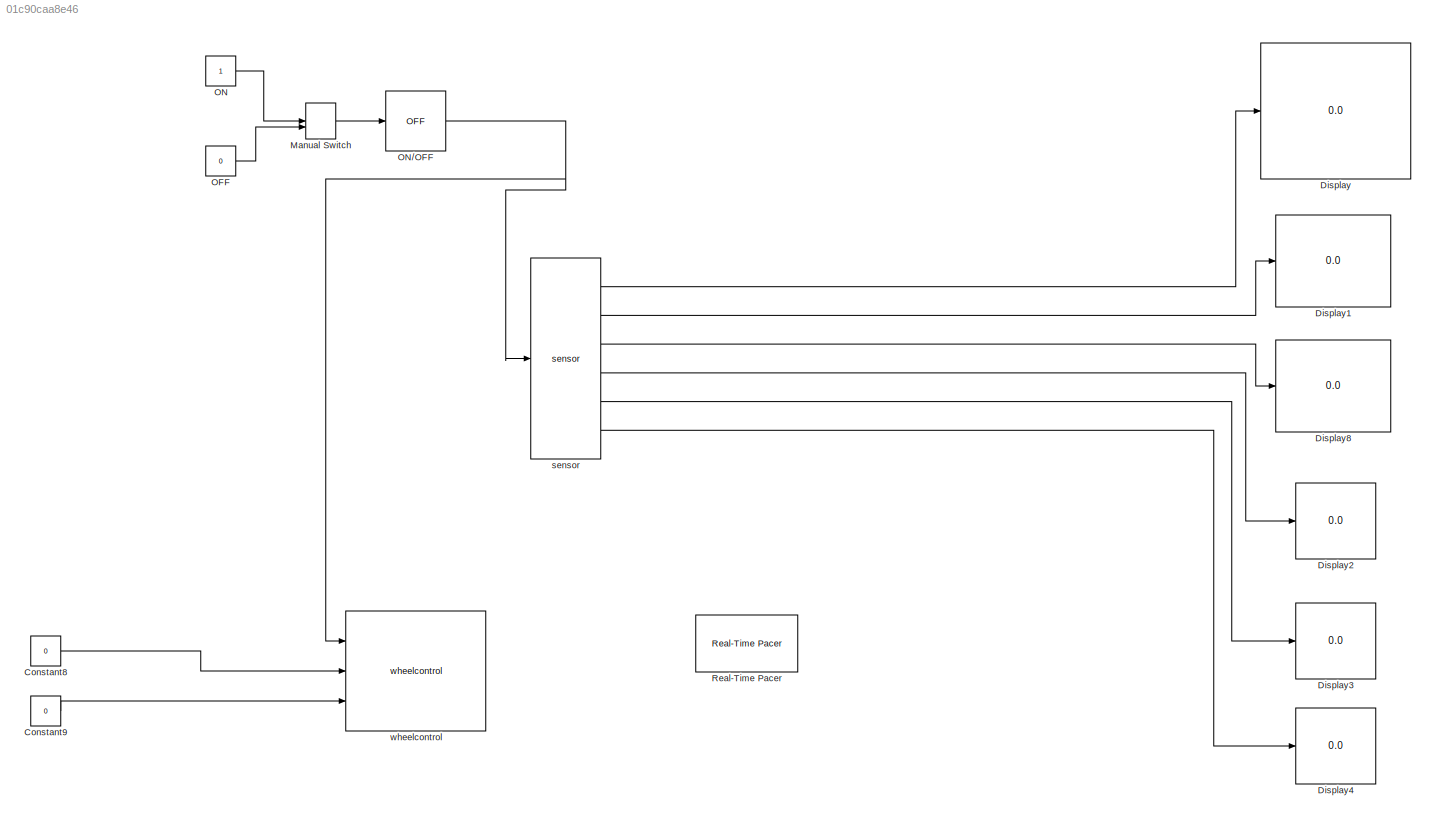
MODEL slx_01c90caa8e46
KIND model
CONFIG AbsTol = auto
CONFIG EnableMultiTasking = off
CONFIG FixedStep = auto
CONFIG MaxStep = auto
CONFIG MinStep = auto
CONFIG RelTol = 1e-3
CONFIG SampleTimeConstraint = Unconstrained
CONFIG Solver = VariableStepAuto
CONFIG SolverName = VariableStepAuto
CONFIG StartTime = 0.0
CONFIG StopTime = inf
BLOCK [Constant] Constant8
  Value = 0
BLOCK [Constant] Constant9
  Value = 0
BLOCK [Display] Display
  Decimation = 1
  Ports = [1]
BLOCK [Display] Display1
  Decimation = 1
  Ports = [1]
BLOCK [Display] Display2
  Decimation = 1
  Ports = [1]
BLOCK [Display] Display3
  Decimation = 1
  Ports = [1]
BLOCK [Display] Display4
  Decimation = 1
  Ports = [1]
BLOCK [Display] Display8
  Decimation = 1
  Ports = [1]
BLOCK [ManualSwitch] Manual Switch
BLOCK [Constant] OFF
  Value = 0
BLOCK [Constant] ON
BLOCK [Reference] ON//OFF  REF=untitledlibrary/ON//OFF
  Ports = [1, 1]
  SourceBlock = untitledlibrary/ON//OFF
  SourceType = SubSystem
BLOCK [Reference] Real-Time Pacer  REF=realtime_pacer_lib/Real-Time Pacer
  Ports = []
  SourceBlock = realtime_pacer_lib/Real-Time Pacer
  SourceType = RealTime_Pacer
BLOCK [Reference] sensor  REF=untitledlibrary/sensor
  Ports = [1, 6]
  SourceBlock = untitledlibrary/sensor
  SourceType = SubSystem
BLOCK [Reference] wheelcontrol  REF=untitledlibrary/wheelcontrol
  Ports = [3]
  Priority = 3
  SourceBlock = untitledlibrary/wheelcontrol
  SourceType = SubSystem
LINE Constant8:1 -> wheelcontrol:2
LINE Constant9:1 -> wheelcontrol:3
LINE Manual Switch:1 -> ON//OFF:1
LINE OFF:1 -> Manual Switch:2
NET ON//OFF:1 -> sensor:1, wheelcontrol:1
LINE ON:1 -> Manual Switch:1
LINE sensor:1 -> Display:1
LINE sensor:2 -> Display1:1
LINE sensor:3 -> Display8:1
LINE sensor:4 -> Display2:1
LINE sensor:5 -> Display3:1
LINE sensor:6 -> Display4:1
note: NET lines group one-source signal fan-out (src -> all destinations, sorted); 1:1 wires keep LINE
